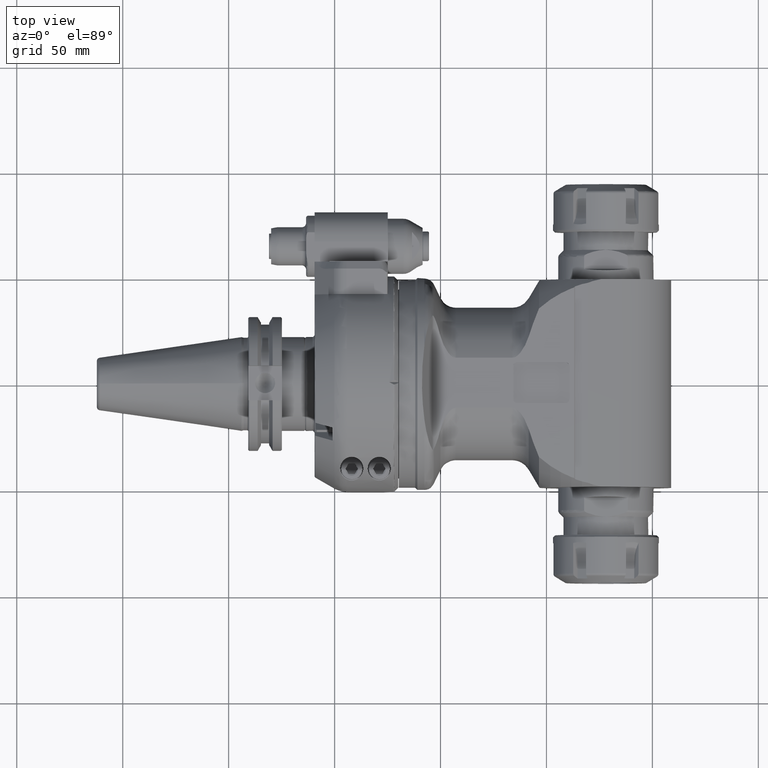
[diagram: clean part render]
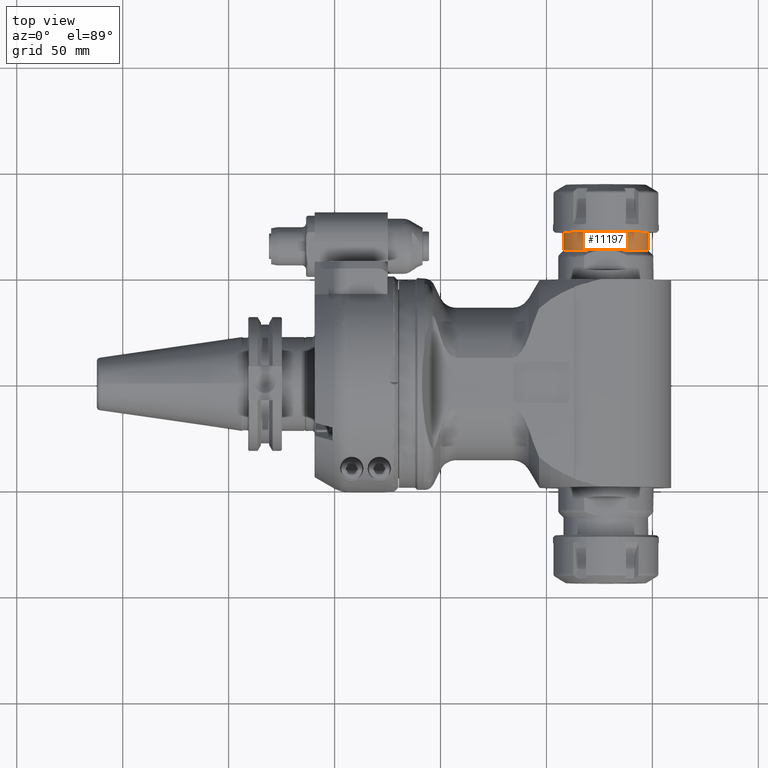
[diagram: same view with one face highlighted and labeled with its STEP entity id]
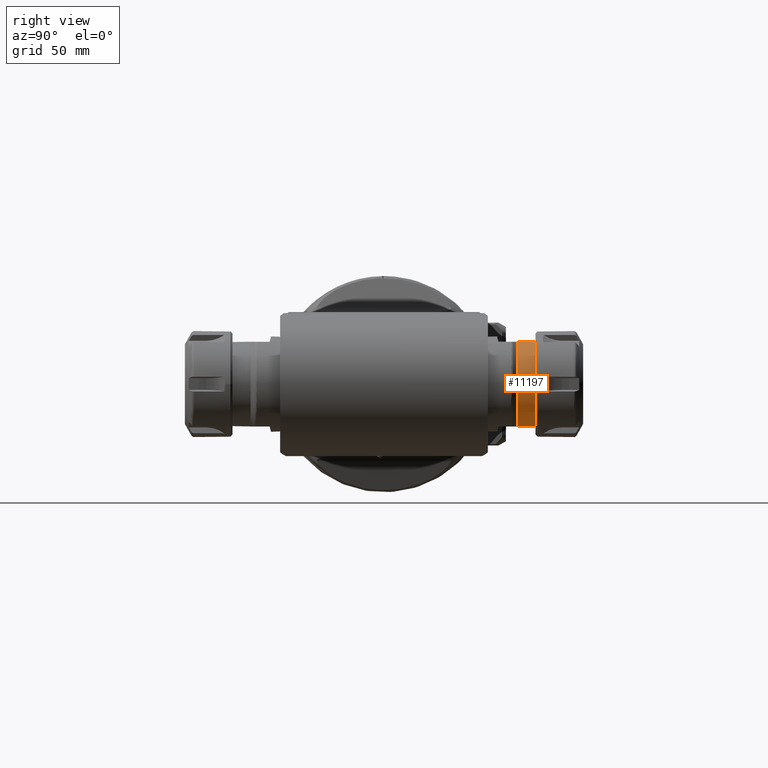
[diagram: same view with one face highlighted and labeled with its STEP entity id]
A machine part, top view. The second image highlights one B-rep face of the part: STEP entity #11197.
A second angle (right view) of the same face is appended — the face is thin or edge-on in the first view.
In plain terms, the highlighted cylindrical surface (bore or boss wall) has radius 20 mm, axis along (0, -1, 0).
Its self-contained STEP definition (entity closure, byte-faithful):
#997=LINE('',#26921,#1671);
#1671=VECTOR('',#14733,20.);
#2042=CYLINDRICAL_SURFACE('',#12258,20.);
#2632=FACE_OUTER_BOUND('',#3350,.T.);
#3350=EDGE_LOOP('',(#9101,#9102,#9103,#9104,#9105,#9106));
#4042=CIRCLE('',#12251,20.);
#4044=CIRCLE('',#12256,20.);
#4045=CIRCLE('',#12257,20.);
#4046=CIRCLE('',#12259,20.);
#4970=VERTEX_POINT('',#26759);
#4973=VERTEX_POINT('',#26842);
#4975=VERTEX_POINT('',#26916);
#4976=VERTEX_POINT('',#26920);
#6425=EDGE_CURVE('',#4970,#4973,#4042,.T.);
#6431=EDGE_CURVE('',#4973,#4975,#4044,.T.);
#6432=EDGE_CURVE('',#4975,#4970,#4045,.T.);
#6433=EDGE_CURVE('',#4975,#4976,#997,.T.);
#6434=EDGE_CURVE('',#4976,#4976,#4046,.T.);
#9101=ORIENTED_EDGE('',*,*,#6431,.F.);
#9102=ORIENTED_EDGE('',*,*,#6425,.F.);
#9103=ORIENTED_EDGE('',*,*,#6432,.F.);
#9104=ORIENTED_EDGE('',*,*,#6433,.T.);
#9105=ORIENTED_EDGE('',*,*,#6434,.T.);
#9106=ORIENTED_EDGE('',*,*,#6433,.F.);
#11197=ADVANCED_FACE('',(#2632),#2042,.T.);
#12251=AXIS2_PLACEMENT_3D('',#26843,#14716,#14717);
#12256=AXIS2_PLACEMENT_3D('',#26917,#14727,#14728);
#12257=AXIS2_PLACEMENT_3D('',#26918,#14729,#14730);
#12258=AXIS2_PLACEMENT_3D('',#26919,#14731,#14732);
#12259=AXIS2_PLACEMENT_3D('',#26922,#14734,#14735);
#14716=DIRECTION('center_axis',(0.,-1.,0.));
#14717=DIRECTION('ref_axis',(1.,0.,0.));
#14727=DIRECTION('center_axis',(0.,-1.,0.));
#14728=DIRECTION('ref_axis',(-1.,0.,0.));
#14729=DIRECTION('center_axis',(0.,-1.,0.));
#14730=DIRECTION('ref_axis',(-1.,0.,0.));
#14731=DIRECTION('center_axis',(0.,-1.,0.));
#14732=DIRECTION('ref_axis',(1.,0.,0.));
#14733=DIRECTION('',(0.,1.,0.));
#14734=DIRECTION('center_axis',(0.,-1.,0.));
#14735=DIRECTION('ref_axis',(1.,0.,0.));
#26759=CARTESIAN_POINT('',(278.063097,63.,-20.));
#26842=CARTESIAN_POINT('',(278.063097,63.,20.));
#26843=CARTESIAN_POINT('Origin',(278.063097,63.,0.));
#26916=CARTESIAN_POINT('',(258.063097,63.,-2.44929359829471E-15));
#26917=CARTESIAN_POINT('Origin',(278.063097,63.,0.));
#26918=CARTESIAN_POINT('Origin',(278.063097,63.,0.));
#26919=CARTESIAN_POINT('Origin',(278.063097,73.2,0.));
#26920=CARTESIAN_POINT('',(258.063097,71.5,0.));
#26921=CARTESIAN_POINT('',(258.063097,73.2,-2.44929359829471E-15));
#26922=CARTESIAN_POINT('Origin',(278.063097,71.5,0.));